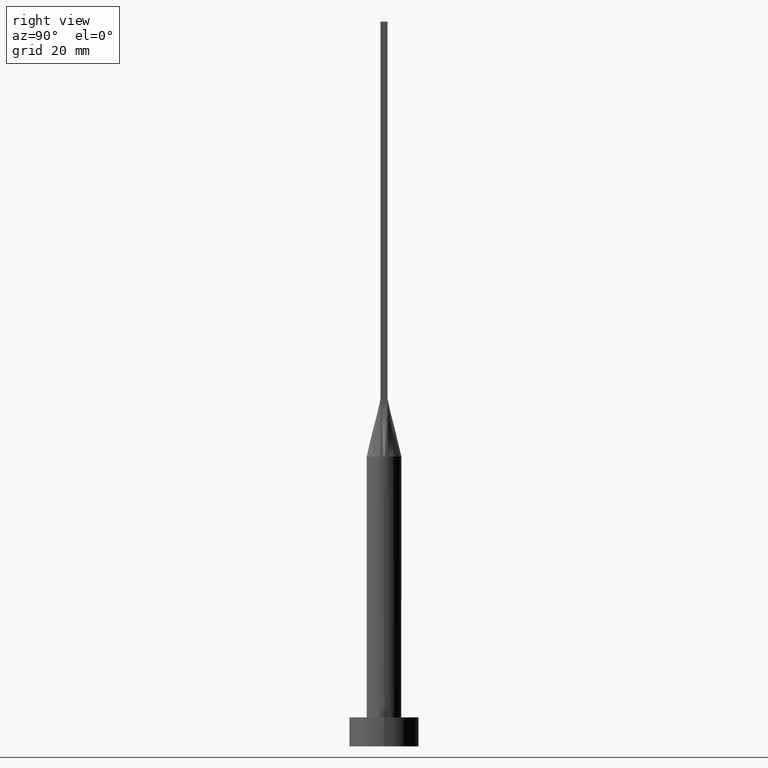
[diagram: clean part render]
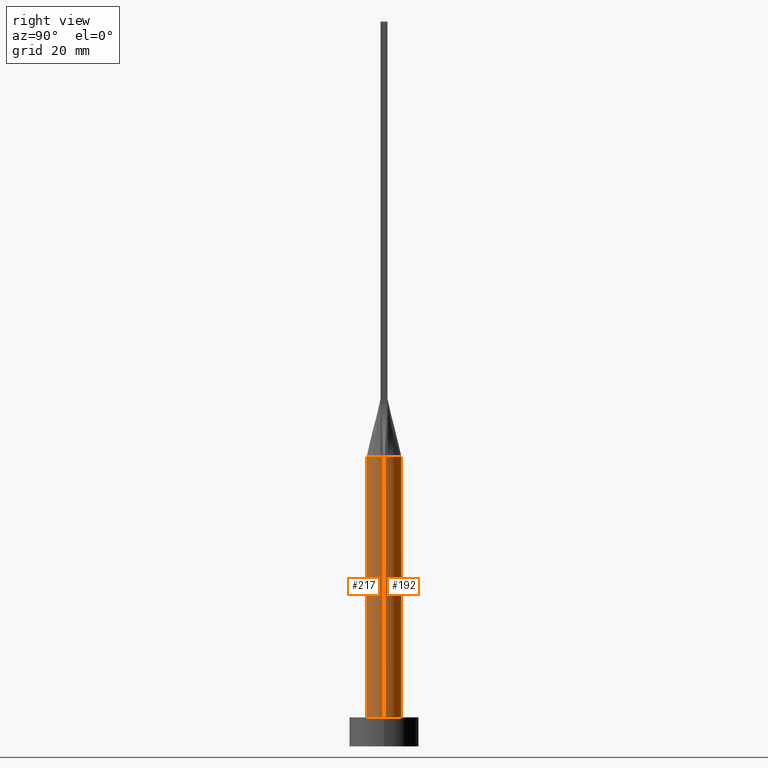
[diagram: same view with one multi-face feature highlighted, each face labeled with its STEP entity id]
A machine part, right view. The highlighted faces form ONE feature: a constant-radius fillet chain: 2 tangent blend faces with common blend radius 3 mm. The faces share edges in the B-rep.
Their STEP definitions:
[1] entity #217 (Cylinder):
#2 = DIRECTION ( 'NONE',  ( 0.000000000000000000, 0.000000000000000000, 1.000000000000000000 ) ) ;
#5 = CARTESIAN_POINT ( 'NONE',  ( 0.000000000000000000, 0.000000000000000000, 49.99999999999999289 ) ) ;
#7 = EDGE_CURVE ( 'NONE', #68, #494, #131, .T. ) ;
#11 = DIRECTION ( 'NONE',  ( 1.000000000000000000, -2.664535259100375697E-15, 0.000000000000000000 ) ) ;
#21 = ORIENTED_EDGE ( 'NONE', *, *, #493, .F. ) ;
#34 = DIRECTION ( 'NONE',  ( -0.000000000000000000, -0.000000000000000000, -1.000000000000000000 ) ) ;
#39 = DIRECTION ( 'NONE',  ( 0.000000000000000000, 0.000000000000000000, 1.000000000000000000 ) ) ;
#46 = DIRECTION ( 'NONE',  ( -1.000000000000000000, 0.000000000000000000, 0.000000000000000000 ) ) ;
#65 = ORIENTED_EDGE ( 'NONE', *, *, #108, .F. ) ;
#68 = VERTEX_POINT ( 'NONE', #320 ) ;
#83 = ORIENTED_EDGE ( 'NONE', *, *, #208, .F. ) ;
#108 = EDGE_CURVE ( 'NONE', #268, #240, #307, .T. ) ;
#120 = DIRECTION ( 'NONE',  ( 0.000000000000000000, 0.000000000000000000, 1.000000000000000000 ) ) ;
#127 = VECTOR ( 'NONE', #389, 1000.000000000000000 ) ;
#131 = CIRCLE ( 'NONE', #272, 3.000000000000000444 ) ;
#147 = DIRECTION ( 'NONE',  ( 1.000000000000000000, 0.000000000000000000, 0.000000000000000000 ) ) ;
#168 = DIRECTION ( 'NONE',  ( 1.000000000000000000, 0.000000000000000000, 0.000000000000000000 ) ) ;
#181 = EDGE_LOOP ( 'NONE', ( #65, #21, #83, #319, #302, #187 ) ) ;
#187 = ORIENTED_EDGE ( 'NONE', *, *, #198, .T. ) ;
#188 = CIRCLE ( 'NONE', #537, 3.000000000000000444 ) ;
#193 = CARTESIAN_POINT ( 'NONE',  ( -3.000000000000000444, 0.000000000000000000, 49.99999999999999289 ) ) ;
#198 = EDGE_CURVE ( 'NONE', #508, #240, #188, .T. ) ;
#208 = EDGE_CURVE ( 'NONE', #494, #333, #265, .T. ) ;
#217 = ADVANCED_FACE ( 'NONE', ( #406 ), #368, .T. ) ;
#223 = DIRECTION ( 'NONE',  ( 1.000000000000000000, 0.000000000000000000, 0.000000000000000000 ) ) ;
#240 = VERTEX_POINT ( 'NONE', #325 ) ;
#265 = CIRCLE ( 'NONE', #322, 3.000000000000000444 ) ;
#268 = VERTEX_POINT ( 'NONE', #346 ) ;
#272 = AXIS2_PLACEMENT_3D ( 'NONE', #529, #2, #168 ) ;
#302 = ORIENTED_EDGE ( 'NONE', *, *, #449, .T. ) ;
#307 = LINE ( 'NONE', #316, #360 ) ;
#311 = CARTESIAN_POINT ( 'NONE',  ( 0.000000000000000000, 0.000000000000000000, 49.99999999999999289 ) ) ;
#313 = CIRCLE ( 'NONE', #370, 3.000000000000000444 ) ;
#316 = CARTESIAN_POINT ( 'NONE',  ( 3.000000000000000444, 3.673940397442059868E-16, 49.99999999999999289 ) ) ;
#319 = ORIENTED_EDGE ( 'NONE', *, *, #7, .F. ) ;
#320 = CARTESIAN_POINT ( 'NONE',  ( -2.999603793582328315, -7.025298958605770567E-16, 49.99999999999999289 ) ) ;
#322 = AXIS2_PLACEMENT_3D ( 'NONE', #335, #515, #223 ) ;
#325 = CARTESIAN_POINT ( 'NONE',  ( 3.000000000000000444, 3.673940397442059868E-16, 5.000000000000000000 ) ) ;
#327 = CARTESIAN_POINT ( 'NONE',  ( -2.931315536094174057, -0.6395601373676296220, 49.99999999999999289 ) ) ;
#333 = VERTEX_POINT ( 'NONE', #483 ) ;
#335 = CARTESIAN_POINT ( 'NONE',  ( 0.000000000000000000, 0.000000000000000000, 49.99999999999999289 ) ) ;
#345 = LINE ( 'NONE', #193, #127 ) ;
#346 = CARTESIAN_POINT ( 'NONE',  ( 2.999603793582328759, 7.166726372340513095E-16, 49.99999999999999289 ) ) ;
#360 = VECTOR ( 'NONE', #34, 1000.000000000000000 ) ;
#368 = CYLINDRICAL_SURFACE ( 'NONE', #378, 3.000000000000000444 ) ;
#370 = AXIS2_PLACEMENT_3D ( 'NONE', #311, #39, #11 ) ;
#378 = AXIS2_PLACEMENT_3D ( 'NONE', #5, #454, #46 ) ;
#387 = CARTESIAN_POINT ( 'NONE',  ( 0.000000000000000000, 0.000000000000000000, 5.000000000000000000 ) ) ;
#389 = DIRECTION ( 'NONE',  ( -0.000000000000000000, -0.000000000000000000, -1.000000000000000000 ) ) ;
#406 = FACE_OUTER_BOUND ( 'NONE', #181, .T. ) ;
#449 = EDGE_CURVE ( 'NONE', #68, #508, #345, .T. ) ;
#454 = DIRECTION ( 'NONE',  ( -0.000000000000000000, -0.000000000000000000, -1.000000000000000000 ) ) ;
#456 = CARTESIAN_POINT ( 'NONE',  ( -3.000000000000000444, 0.000000000000000000, 5.000000000000000000 ) ) ;
#483 = CARTESIAN_POINT ( 'NONE',  ( 2.931332910560268790, -0.6395638358681943192, 49.99999999999999289 ) ) ;
#493 = EDGE_CURVE ( 'NONE', #333, #268, #313, .T. ) ;
#494 = VERTEX_POINT ( 'NONE', #327 ) ;
#508 = VERTEX_POINT ( 'NONE', #456 ) ;
#515 = DIRECTION ( 'NONE',  ( 0.000000000000000000, 0.000000000000000000, 1.000000000000000000 ) ) ;
#529 = CARTESIAN_POINT ( 'NONE',  ( 0.000000000000000000, 0.000000000000000000, 49.99999999999999289 ) ) ;
#537 = AXIS2_PLACEMENT_3D ( 'NONE', #387, #120, #147 ) ;
[2] entity #192 (Cylinder):
#3 = CARTESIAN_POINT ( 'NONE',  ( -2.518011668798964653, 1.657305971825549840, 50.00000000000000000 ) ) ;
#17 = FACE_OUTER_BOUND ( 'NONE', #516, .T. ) ;
#19 = EDGE_CURVE ( 'NONE', #286, #567, #93, .T. ) ;
#23 = CARTESIAN_POINT ( 'NONE',  ( 0.000000000000000000, 0.000000000000000000, 49.99999999999999289 ) ) ;
#30 = DIRECTION ( 'NONE',  ( 0.000000000000000000, 0.000000000000000000, 1.000000000000000000 ) ) ;
#34 = DIRECTION ( 'NONE',  ( -0.000000000000000000, -0.000000000000000000, -1.000000000000000000 ) ) ;
#43 = CIRCLE ( 'NONE', #447, 3.000000000000000444 ) ;
#44 = CARTESIAN_POINT ( 'NONE',  ( 2.328745122427009040, 1.922758842442225946, 49.99999999999998579 ) ) ;
#54 = ORIENTED_EDGE ( 'NONE', *, *, #449, .F. ) ;
#68 = VERTEX_POINT ( 'NONE', #320 ) ;
#84 = CARTESIAN_POINT ( 'NONE',  ( -2.792624347712117761, 1.135030881087315313, 49.99999999999998579 ) ) ;
#88 = CARTESIAN_POINT ( 'NONE',  ( -0.4026715616377299356, 2.999999999999999556, 49.99999999999998579 ) ) ;
#93 = B_SPLINE_CURVE_WITH_KNOTS ( 'NONE', 3,
 ( #409, #376, #554, #139, #44, #212, #281, #97, #324, #88, #504, #579, #498, #165, #3, #84, #366, #134 ),
 .UNSPECIFIED., .F., .F.,
 ( 4, 2, 2, 2, 2, 2, 2, 2, 4 ),
 ( 0.000000000000000000, 0.1250000000000000000, 0.2500000000000000000, 0.3750000000000000000, 0.5000000000000000000, 0.6250000000000000000, 0.7500000000000000000, 0.8750000000000000000, 1.000000000000000000 ),
 .UNSPECIFIED. ) ;
#97 = CARTESIAN_POINT ( 'NONE',  ( 0.8041209001220689379, 2.916015559847871863, 50.00000000000000711 ) ) ;
#108 = EDGE_CURVE ( 'NONE', #268, #240, #307, .T. ) ;
#127 = VECTOR ( 'NONE', #389, 1000.000000000000000 ) ;
#134 = CARTESIAN_POINT ( 'NONE',  ( -2.931320679040856803, 0.6395611071856786012, 49.99999999999999289 ) ) ;
#139 = CARTESIAN_POINT ( 'NONE',  ( 2.518011668798964209, 1.657305971825549840, 49.99999999999997158 ) ) ;
#151 = CARTESIAN_POINT ( 'NONE',  ( 0.000000000000000000, 0.000000000000000000, 49.99999999999999289 ) ) ;
#161 = CARTESIAN_POINT ( 'NONE',  ( -2.931320679040856803, 0.6395611071856786012, 49.99999999999999289 ) ) ;
#165 = CARTESIAN_POINT ( 'NONE',  ( -2.328745122427008152, 1.922758842442225280, 49.99999999999998579 ) ) ;
#173 = ORIENTED_EDGE ( 'NONE', *, *, #178, .F. ) ;
#175 = AXIS2_PLACEMENT_3D ( 'NONE', #23, #396, #431 ) ;
#178 = EDGE_CURVE ( 'NONE', #268, #286, #43, .T. ) ;
#192 = ADVANCED_FACE ( 'NONE', ( #17 ), #523, .T. ) ;
#193 = CARTESIAN_POINT ( 'NONE',  ( -3.000000000000000444, 0.000000000000000000, 49.99999999999999289 ) ) ;
#212 = CARTESIAN_POINT ( 'NONE',  ( 1.829136458871247761, 2.402980488111650992, 49.99999999999998579 ) ) ;
#219 = ORIENTED_EDGE ( 'NONE', *, *, #19, .F. ) ;
#222 = ORIENTED_EDGE ( 'NONE', *, *, #429, .F. ) ;
#233 = ORIENTED_EDGE ( 'NONE', *, *, #377, .T. ) ;
#240 = VERTEX_POINT ( 'NONE', #325 ) ;
#253 = AXIS2_PLACEMENT_3D ( 'NONE', #298, #30, #467 ) ;
#268 = VERTEX_POINT ( 'NONE', #346 ) ;
#281 = CARTESIAN_POINT ( 'NONE',  ( 1.517787371616672099, 2.616501225271827824, 50.00000000000000000 ) ) ;
#286 = VERTEX_POINT ( 'NONE', #308 ) ;
#291 = CIRCLE ( 'NONE', #175, 3.000000000000000444 ) ;
#292 = ORIENTED_EDGE ( 'NONE', *, *, #108, .T. ) ;
#298 = CARTESIAN_POINT ( 'NONE',  ( 0.000000000000000000, 0.000000000000000000, 5.000000000000000000 ) ) ;
#307 = LINE ( 'NONE', #316, #360 ) ;
#308 = CARTESIAN_POINT ( 'NONE',  ( 2.931303352270923757, 0.6395574164693091923, 49.99999999999999289 ) ) ;
#316 = CARTESIAN_POINT ( 'NONE',  ( 3.000000000000000444, 3.673940397442059868E-16, 49.99999999999999289 ) ) ;
#320 = CARTESIAN_POINT ( 'NONE',  ( -2.999603793582328315, -7.025298958605770567E-16, 49.99999999999999289 ) ) ;
#324 = CARTESIAN_POINT ( 'NONE',  ( 0.4026715616377294915, 2.999999999999999556, 49.99999999999999289 ) ) ;
#325 = CARTESIAN_POINT ( 'NONE',  ( 3.000000000000000444, 3.673940397442059868E-16, 5.000000000000000000 ) ) ;
#342 = DIRECTION ( 'NONE',  ( -0.000000000000000000, -0.000000000000000000, -1.000000000000000000 ) ) ;
#345 = LINE ( 'NONE', #193, #127 ) ;
#346 = CARTESIAN_POINT ( 'NONE',  ( 2.999603793582328759, 7.166726372340513095E-16, 49.99999999999999289 ) ) ;
#352 = DIRECTION ( 'NONE',  ( 1.000000000000000000, 0.000000000000000000, 0.000000000000000000 ) ) ;
#360 = VECTOR ( 'NONE', #34, 1000.000000000000000 ) ;
#366 = CARTESIAN_POINT ( 'NONE',  ( -2.878980386154874616, 0.8781411751610629368, 50.00000000000000000 ) ) ;
#376 = CARTESIAN_POINT ( 'NONE',  ( 2.878980386154874616, 0.8781411751610636029, 49.99999999999999289 ) ) ;
#377 = EDGE_CURVE ( 'NONE', #240, #508, #495, .T. ) ;
#389 = DIRECTION ( 'NONE',  ( -0.000000000000000000, -0.000000000000000000, -1.000000000000000000 ) ) ;
#396 = DIRECTION ( 'NONE',  ( 0.000000000000000000, 0.000000000000000000, 1.000000000000000000 ) ) ;
#409 = CARTESIAN_POINT ( 'NONE',  ( 2.931303352270923757, 0.6395574164693091923, 49.99999999999999289 ) ) ;
#428 = DIRECTION ( 'NONE',  ( -1.000000000000000000, 0.000000000000000000, 0.000000000000000000 ) ) ;
#429 = EDGE_CURVE ( 'NONE', #567, #68, #291, .T. ) ;
#431 = DIRECTION ( 'NONE',  ( 1.000000000000000000, 0.000000000000000000, 0.000000000000000000 ) ) ;
#447 = AXIS2_PLACEMENT_3D ( 'NONE', #151, #468, #352 ) ;
#449 = EDGE_CURVE ( 'NONE', #68, #508, #345, .T. ) ;
#456 = CARTESIAN_POINT ( 'NONE',  ( -3.000000000000000444, 0.000000000000000000, 5.000000000000000000 ) ) ;
#467 = DIRECTION ( 'NONE',  ( 1.000000000000000000, 0.000000000000000000, 0.000000000000000000 ) ) ;
#468 = DIRECTION ( 'NONE',  ( 0.000000000000000000, 0.000000000000000000, 1.000000000000000000 ) ) ;
#495 = CIRCLE ( 'NONE', #253, 3.000000000000000444 ) ;
#498 = CARTESIAN_POINT ( 'NONE',  ( -1.829136458871247761, 2.402980488111649660, 49.99999999999998579 ) ) ;
#504 = CARTESIAN_POINT ( 'NONE',  ( -0.8041209001220690489, 2.916015559847871419, 50.00000000000000711 ) ) ;
#508 = VERTEX_POINT ( 'NONE', #456 ) ;
#516 = EDGE_LOOP ( 'NONE', ( #173, #292, #233, #54, #222, #219 ) ) ;
#523 = CYLINDRICAL_SURFACE ( 'NONE', #524, 3.000000000000000444 ) ;
#524 = AXIS2_PLACEMENT_3D ( 'NONE', #560, #342, #428 ) ;
#554 = CARTESIAN_POINT ( 'NONE',  ( 2.792624347712116872, 1.135030881087315979, 50.00000000000000000 ) ) ;
#560 = CARTESIAN_POINT ( 'NONE',  ( 0.000000000000000000, 0.000000000000000000, 49.99999999999999289 ) ) ;
#567 = VERTEX_POINT ( 'NONE', #161 ) ;
#579 = CARTESIAN_POINT ( 'NONE',  ( -1.517787371616671654, 2.616501225271827380, 50.00000000000000711 ) ) ;